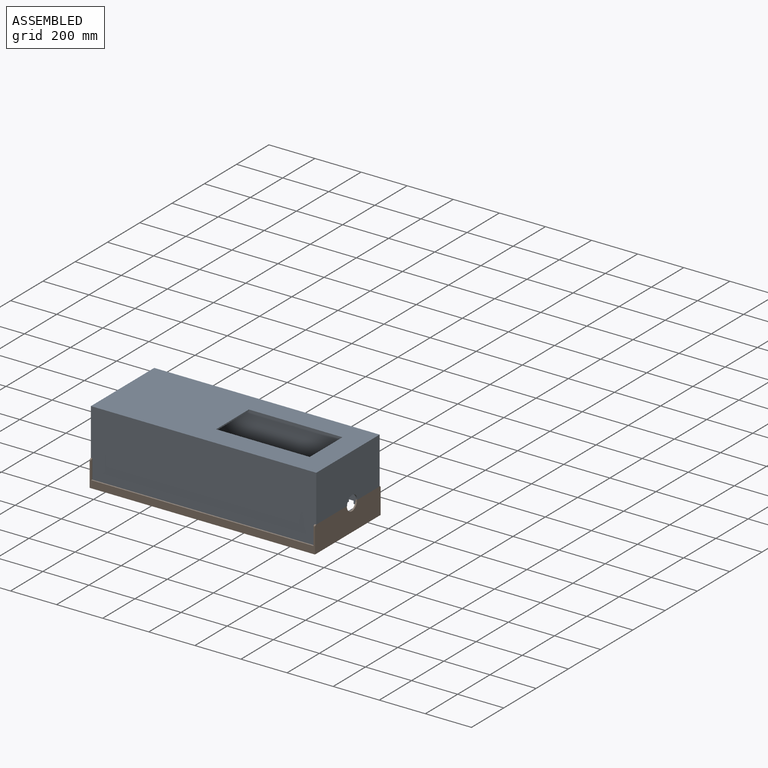
[diagram: assembled view]
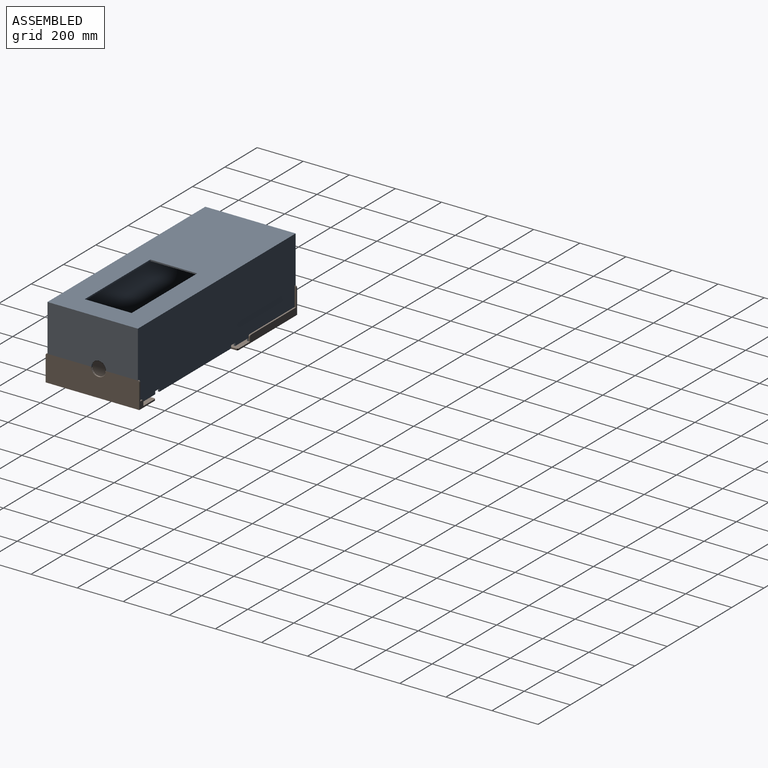
[diagram: assembled view, second angle]
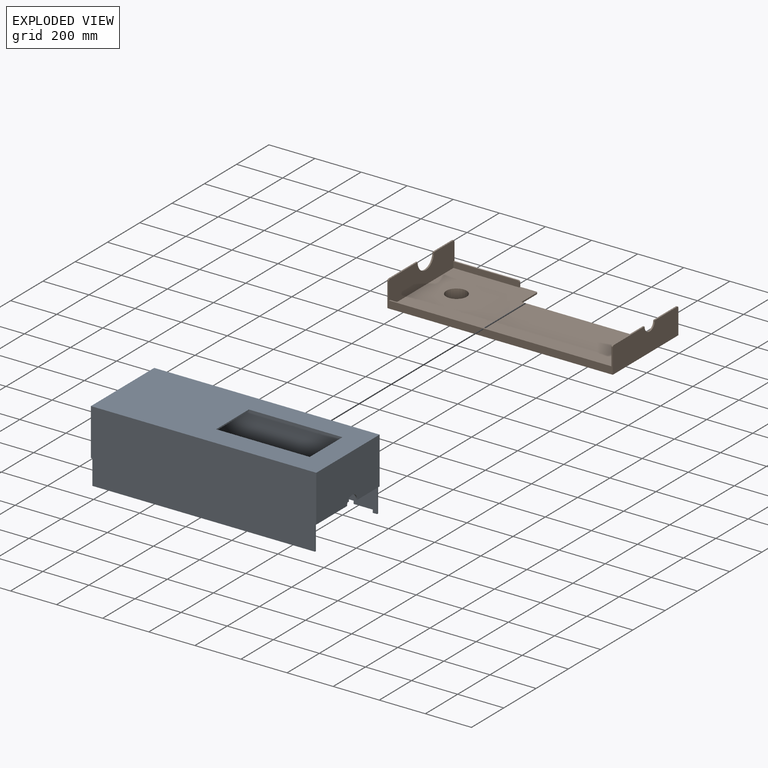
[diagram: exploded view]
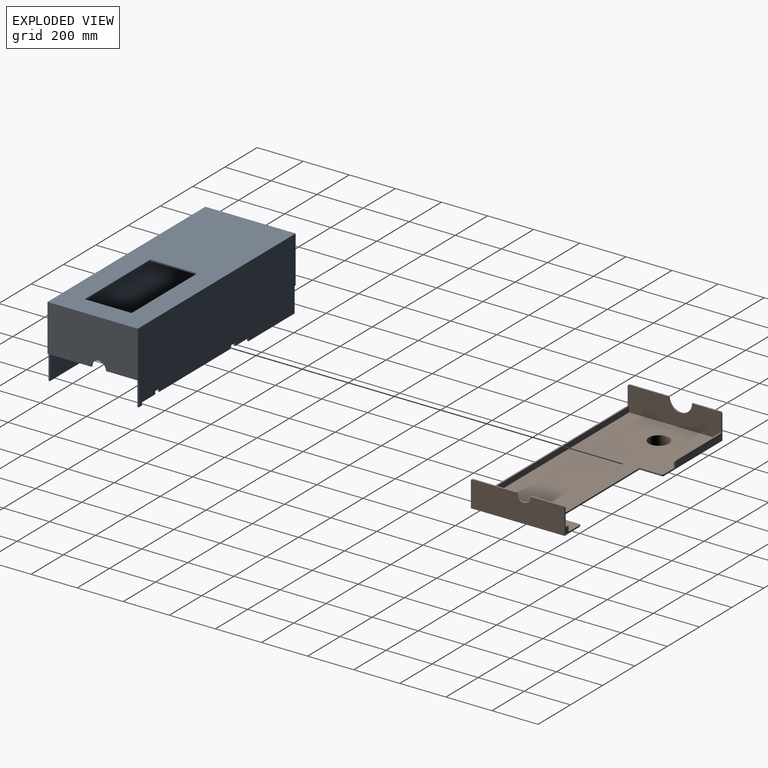
[diagram: exploded view, second angle]
ASSEMBLY  parts=2 mates=4
PART A: 38 faces, bbox 977.9x392.1x311.2 mm
  f0: plane 19.05x6.35mm, normal (0,0,-1), area 121mm2, adj f1,f2,f8,f27
  f1: plane 977.9x311.15mm, normal (0,1,0), area 293870.4mm2, adj f0,f4,f5,f6,f8,f10,f15,f16
  f2: plane 965.2x304.8mm, normal (0,-1,0), area 285160.7mm2, adj f0,f3,f8,f15,f16,f17,f19,f27
  f3: plane 965.2x379.41mm, normal (0,0,-1), area 283628.5mm2, adj f2,f12,f17,f19,f23,f24,f25,f26
  f4: plane 977.9x392.11mm, normal (0,0,1), area 300866.3mm2, adj f1,f5,f10,f11,f23,f24,f25,f26
  f5: plane 392.11x203.2mm, normal (1,0,0), area 78093.8mm2, adj f1,f4,f6,f11,f20,f22
  f6: plane 138.11x6.35mm, normal (0,0,-1), area 877mm2, adj f1,f5,f8,f19,f22
  f7: plane 171.45x6.35mm, normal (0,0,-1), area 1088.7mm2, adj f9,f10,f11,f17,f21
  f8: plane 107.95x6.35mm, normal (1,0,0), area 685.5mm2, adj f0,f1,f2,f6
  f9: plane 107.95x6.35mm, normal (-1,0,0), area 685.5mm2, adj f7,f11,f12,f14
  f10: plane 392.11x203.2mm, normal (-1,0,0), area 75623.6mm2, adj f1,f4,f7,f11,f18,f21
  f11: plane 977.9x311.15mm, normal (0,-1,0), area 302902.6mm2, adj f4,f5,f7,f9,f10,f13,f14,f20
  f12: plane 965.2x304.8mm, normal (0,1,0), area 294193mm2, adj f3,f9,f13,f14,f17,f19
  f13: plane 107.95x6.35mm, normal (1,0,0), area 685.5mm2, adj f11,f12,f14,f20
  f14: plane 965.2x6.35mm, normal (0,0,-1), area 6129mm2, adj f9,f11,f12,f13
  f15: plane 107.95x6.35mm, normal (-1,0,0), area 685.5mm2, adj f1,f2,f16,f18
  f16: plane 285.75x6.35mm, normal (0,0,-1), area 1814.5mm2, adj f1,f2,f15,f28
  f17: plane 379.41x196.85mm, normal (1,0,0), area 70633.7mm2, adj f2,f3,f7,f12,f18,f21
  f18: plane 119.06x6.35mm, normal (0,0,-1), area 756mm2, adj f1,f10,f15,f17,f21
  f19: plane 379.41x196.85mm, normal (-1,0,0), area 73103.9mm2, adj f2,f3,f6,f12,f20,f22
  f20: plane 190.5x6.35mm, normal (0,0,-1), area 1209.7mm2, adj f5,f11,f13,f19,f22
  f21: cylinder r=50.8mm len=101.6mm, axis (-1,0,0), area 1013.4mm2, adj f7,f10,f17,f18
  f22: cylinder r=31.75mm len=63.5mm, axis (1,0,0), area 633.4mm2, adj f5,f6,f19,f20
  f23: plane 406.4x6.35mm, normal (0,-1,0), area 2580.6mm2, adj f3,f4,f24,f26
  f24: plane 203.2x6.35mm, normal (1,0,0), area 1290.3mm2, adj f3,f4,f23,f25
  f25: plane 406.4x6.35mm, normal (0,1,0), area 2580.6mm2, adj f3,f4,f24,f26
  f26: plane 203.2x6.35mm, normal (-1,0,0), area 1290.3mm2, adj f3,f4,f23,f25
  f27: plane 12.7x6.35mm, normal (-1,0,0), area 80.6mm2, adj f0,f1,f2,f37
  f28: plane 12.7x6.35mm, normal (1,0,0), area 80.6mm2, adj f1,f2,f16,f29
  f29: plane 82.55x6.35mm, normal (0,0,-1), area 524.2mm2, adj f1,f2,f28,f30
  f30: plane 12.7x6.35mm, normal (1,0,0), area 80.6mm2, adj f1,f2,f29,f31
  f31: plane 25.4x6.35mm, normal (0,0,-1), area 161.3mm2, adj f1,f2,f30,f32
  f32: plane 12.7x6.35mm, normal (-1,0,0), area 80.6mm2, adj f1,f2,f31,f33
  f33: plane 444.5x6.35mm, normal (0,0,-1), area 2822.6mm2, adj f1,f2,f32,f34
  f34: plane 12.7x6.35mm, normal (1,0,0), area 80.6mm2, adj f1,f2,f33,f35
  f35: plane 25.4x6.35mm, normal (0,0,-1), area 161.3mm2, adj f1,f2,f34,f36
  f36: plane 12.7x6.35mm, normal (-1,0,0), area 80.6mm2, adj f1,f2,f35,f37
  f37: plane 82.55x6.35mm, normal (0,0,-1), area 524.2mm2, adj f1,f2,f27,f36
PART B: 37 faces, bbox 977.9x406.4x215.9 mm
  f0: plane 139.7x6.35mm, normal (0,0,1), area 887.1mm2, adj f1,f22,f25,f30
  f1: plane 406.4x114.3mm, normal (1,0,0), area 44850.8mm2, adj f0,f6,f7,f11,f23,f25,f29,f30
  f2: plane 120.65x6.35mm, normal (0,0,1), area 766.1mm2, adj f5,f20,f24,f31
  f3: plane 965.2x400.05mm, normal (0,0,1), area 326355.5mm2, adj f4,f7,f8,f9,f10,f12,f14,f15
  f4: plane 361.95x107.95mm, normal (0,1,0), area 10192.9mm2, adj f3,f5,f11,f18,f19,f20,f31,f33
  f5: plane 406.4x114.3mm, normal (-1,0,0), area 42380.6mm2, adj f2,f4,f6,f11,f21,f24,f31,f32
  f6: plane 977.9x107.95mm, normal (0,-1,0), area 32016.1mm2, adj f1,f5,f11,f13,f20,f22,f29,f32
  f7: plane 107.95x95.25mm, normal (0,1,0), area 1725.2mm2, adj f1,f3,f11,f14,f16,f22,f30,f34
  f8: plane 95.25x6.35mm, normal (-1,0,0), area 604.8mm2, adj f3,f9,f11,f35
  f9: plane 508x6.35mm, normal (0,1,0), area 3225.8mm2, adj f3,f8,f10,f11
  f10: plane 95.25x6.35mm, normal (1,0,0), area 604.8mm2, adj f3,f9,f11,f36
  f11: plane 977.9x406.4mm, normal (0,0,-1), area 337681.1mm2, adj f1,f4,f5,f6,f7,f8,f9,f10
  f12: plane 965.2x25.4mm, normal (0,1,0), area 24516.1mm2, adj f3,f13,f20,f22
  f13: plane 965.2x6.35mm, normal (0,0,1), area 6129mm2, adj f6,f12,f20,f22
  f14: plane 19.05x6.35mm, normal (-1,0,0), area 121mm2, adj f3,f7,f15,f34
  f15: plane 25.4x19.05mm, normal (0,-1,0), area 475.2mm2, adj f3,f14,f16,f22,f34
  f16: plane 12.7x6.35mm, normal (0,0,1), area 80.6mm2, adj f7,f15,f22,f34
  f17: plane 285.75x25.4mm, normal (0,-1,0), area 7249.4mm2, adj f3,f18,f19,f20,f33
  f18: plane 19.05x6.35mm, normal (1,0,0), area 121mm2, adj f3,f4,f17,f33
  f19: plane 279.4x6.35mm, normal (0,0,1), area 1774.2mm2, adj f4,f17,f20,f33
  f20: plane 406.4x107.95mm, normal (1,0,0), area 39477.3mm2, adj f2,f3,f4,f6,f12,f13,f17,f19
  f21: plane 171.45x6.35mm, normal (0,0,1), area 1088.7mm2, adj f5,f20,f24,f32
  f22: plane 406.4x107.95mm, normal (-1,0,0), area 41947.5mm2, adj f0,f3,f6,f7,f12,f13,f15,f16
  f23: plane 190.5x6.35mm, normal (0,0,1), area 1209.7mm2, adj f1,f22,f25,f29
  f24: cylinder r=50.8mm len=101.6mm, axis (1,0,0), area 1013.4mm2, adj f2,f5,f20,f21
  f25: cylinder r=31.75mm len=63.5mm, axis (1,0,0), area 633.4mm2, adj f0,f1,f22,f23
  f26: cylinder r=44.45mm len=107.95mm, axis (0,0,1), area 30149.1mm2, adj f3,f28
  f27: cylinder r=50.8mm len=101.6mm, axis (0,0,1), area 32429.3mm2, adj f11,f28
  f28: plane 101.6x101.6mm, normal (0,0,-1), area 1900.2mm2, adj f26,f27
  f29: cylinder r=6.35mm len=6.35mm, axis (-1,0,0), area 63.3mm2, adj f1,f6,f22,f23
  f30: cylinder r=6.35mm len=6.35mm, axis (1,0,0), area 63.3mm2, adj f0,f1,f7,f22
  f31: cylinder r=6.35mm len=6.35mm, axis (1,0,0), area 63.3mm2, adj f2,f4,f5,f20
  f32: cylinder r=6.35mm len=6.35mm, axis (-1,0,0), area 63.3mm2, adj f5,f6,f20,f21
  f33: cylinder r=6.35mm len=6.35mm, axis (0,-1,0), area 63.3mm2, adj f4,f17,f18,f19
  f34: cylinder r=6.35mm len=6.35mm, axis (0,1,0), area 63.3mm2, adj f7,f14,f15,f16
  f35: cylinder r=6.35mm len=6.35mm, axis (0,0,1), area 63.3mm2, adj f3,f7,f8,f11
  f36: cylinder r=6.35mm len=6.35mm, axis (0,0,-1), area 63.3mm2, adj f3,f4,f10,f11
PLACE A t=(-201.58,-867.8,-15.84)mm
PLACE B t=(-34.73,-754.08,-326.99)mm
MATE planar A.f1 <-> B.f15  axis (0,1,0) through (163.91,-536.88,-160.03)mm
MATE parallel A.f1 <-> B.f7  axis (0,1,0) through (163.91,-536.88,-160.03)mm
MATE planar A.f5 <-> B.f1  axis (1,0,0) through (656.95,-536.88,-111.09)mm
MATE planar A.f0 <-> B.f3  axis (0,0,-1) through (641.08,-540.06,-320.64)mm
